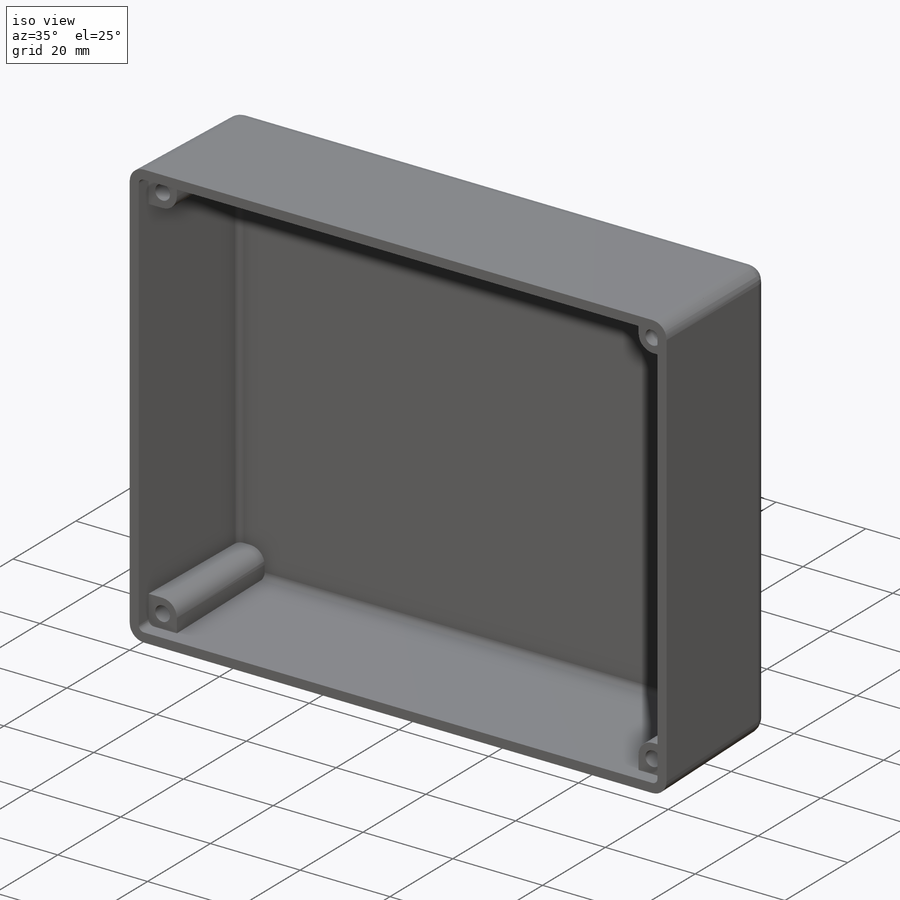
[diagram: iso view]
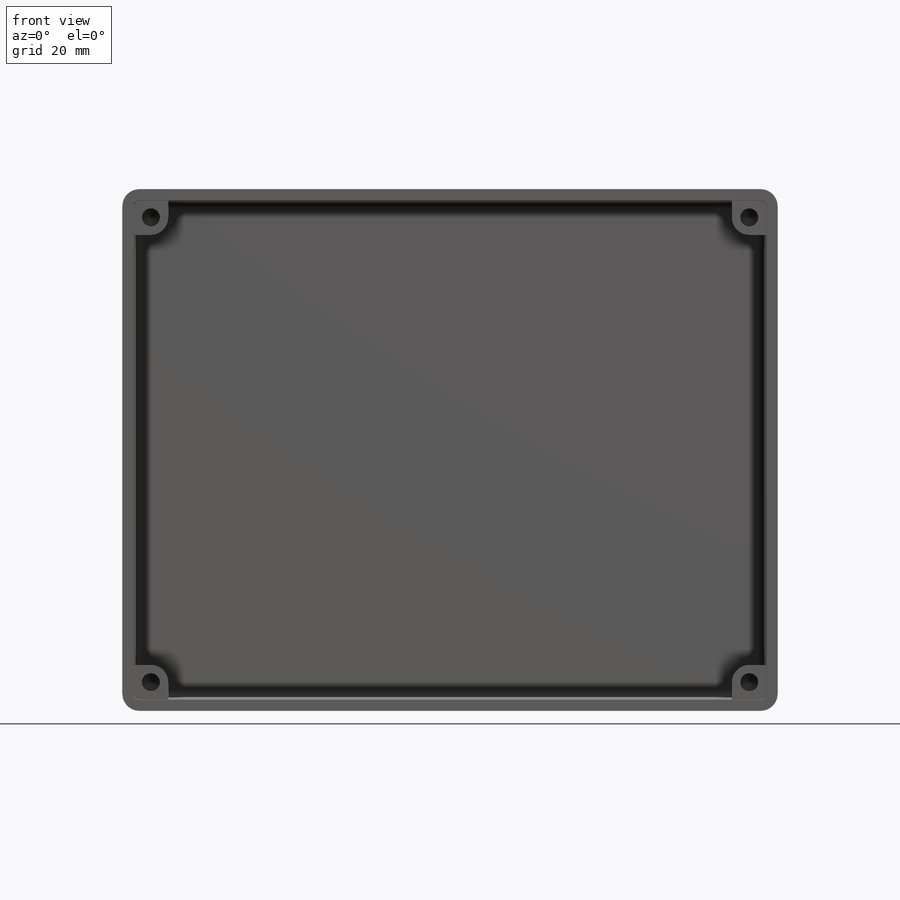
[diagram: front view]
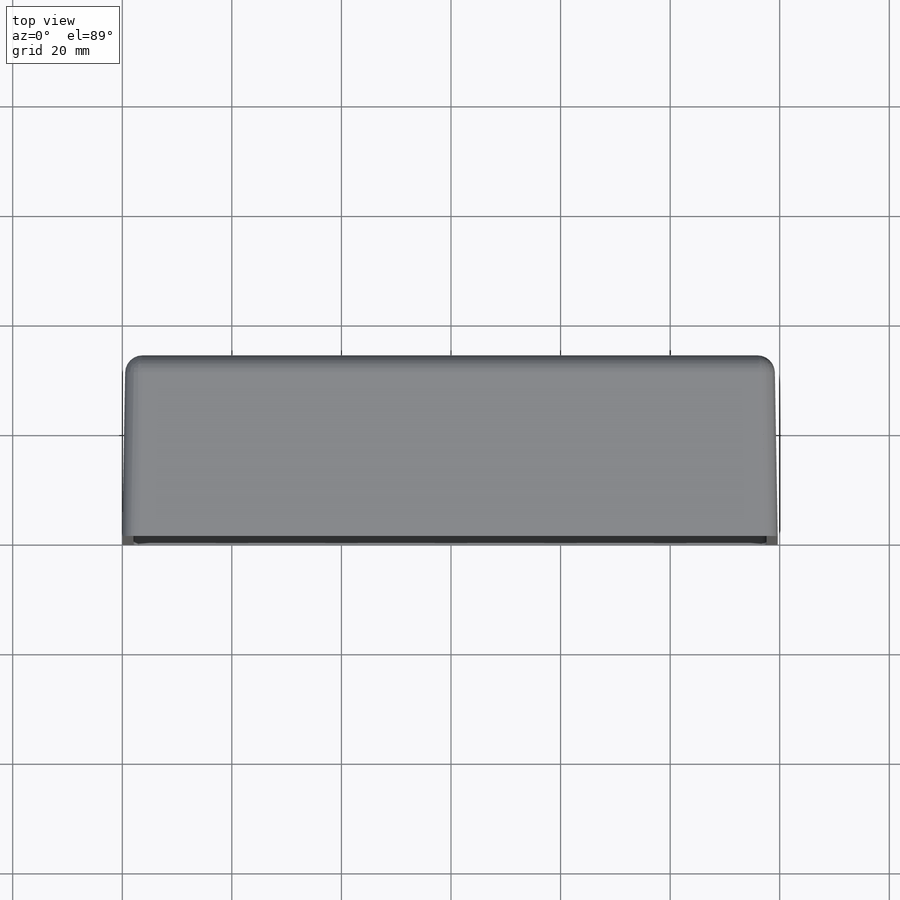
[diagram: top view]
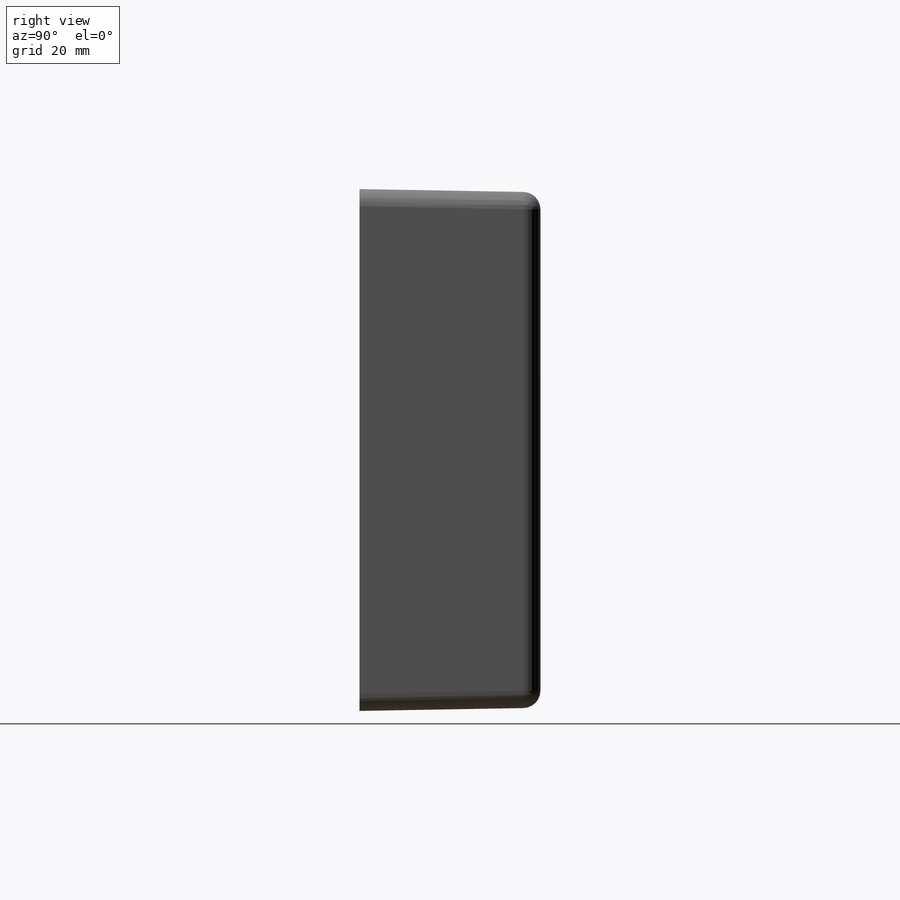
[diagram: right view]
SOLIDWORKS PART (.sldprt)
format: sldprt  version: not decoded by parser v0  size: 291,840 bytes
history: native  units: mm
features: sketch x4, extrude x2, material x1, fillet x1, shell x1, hole x1 (+13 scaffold rows collapsed)
feature tree (23):
  scaffold x13  (default folders/planes/origin — collapsed)
  material  "Material <not specified>"
  sketch  "Sketch1"  dims[D1=95.25mm D2=119.634mm]
  extrude  "Boss-Extrude1"  Depth=33.02mm
  fillet  "Fillet1"  Radius=3.175mm
  shell  "Shell1"  Thickness=2.032mm
  sketch  "Sketch2"  dims[c1.D3=3.175mm c1.D6=3.175mm c1.D9=3.175mm c1.D12=3.175mm c2.D9=3.175mm c2.D1=6.35mm c2.D2=6.35mm c2.D4=6.35mm c2.D5=6.35mm c2.D7=6.35mm c2.D8=6.35mm c2.D10=6.35mm c2.D11=6.35mm c3.D7=6.35mm c3.D8=6.35mm]
  extrude  "Boss-Extrude2"  Depth=27.94mm
  hole  "Tap Drill for M4x0.7 Tap1"  Diameter=3.3mm Depth=25.4mm
  sketch  "Sketch4"
  sketch  "Sketch5"  dims[hole-wizard template sketch: 47 standard entries collapsed; hole parameters kept: c15.Hole Depth=25.4mm c15.D3=~14.816244mm c15.Drill Angle=118.0deg]
decode coverage: 8 of 9 modeling features carry decoded parameters
note: ~ marks probable driven/reference dimensions
note: suppression state not decoded; provenance and decode notes live in map.json
